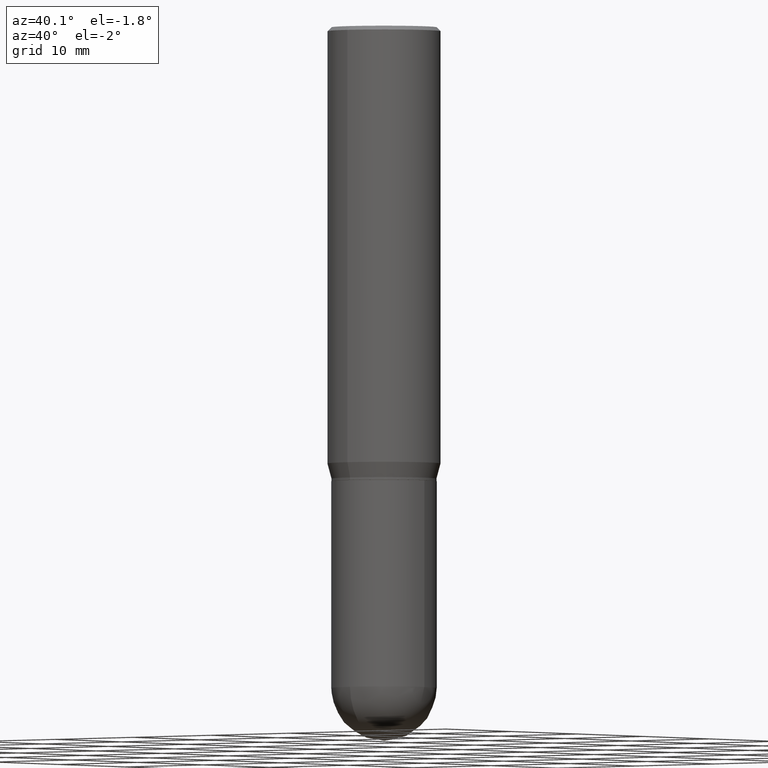
[diagram: clean part render]
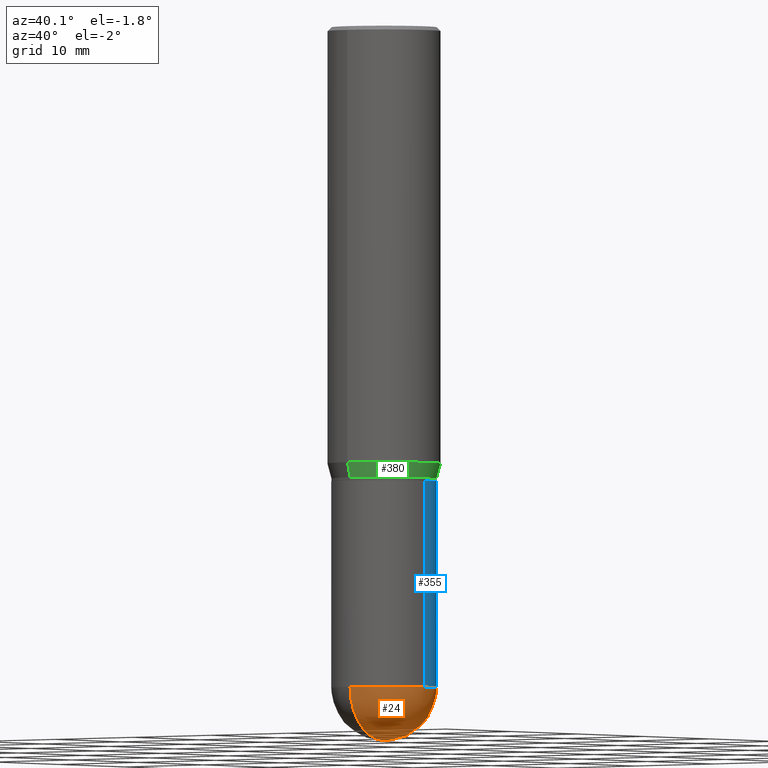
[diagram: same view with three faces highlighted in distinct colors, each labeled with its STEP entity id]
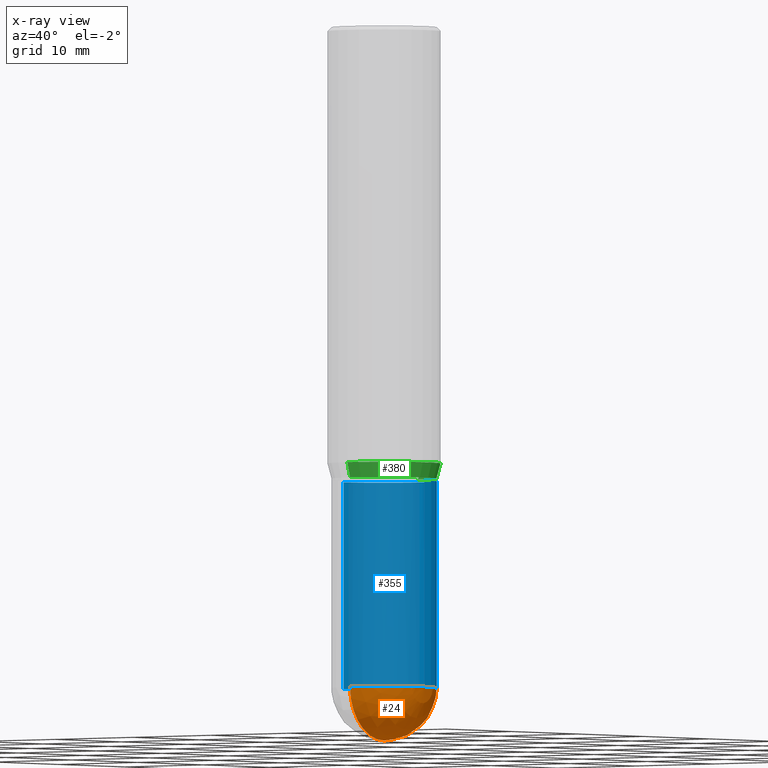
[diagram: x-ray of the same camera — body ghosted, the three highlighted faces saturated]
A machine part, auxiliary view with three faces highlighted in distinct colors.
The next image is the same camera in x-ray (body ghosted, the three faces saturated) — at least one of them is partly hidden behind the body in this view.
Their STEP definitions:

[orange] entity #24 — the highlighted spherical surface has radius 5.1587 mm.
#3 = CIRCLE ( 'NONE', #327, 0.2030999999999999472 ) ;
#6 = EDGE_CURVE ( 'NONE', #292, #410, #195, .T. ) ;
#24 = ADVANCED_FACE ( 'NONE', ( #175 ), #344, .T. ) ;
#28 = DIRECTION ( 'NONE',  ( -7.105427357601001070E-15, -1.000000000000000000, 0.000000000000000000 ) ) ;
#45 = CARTESIAN_POINT ( 'NONE',  ( -1.443112296328700980E-15, -0.2031000000000088845, -2.546899999999999498 ) ) ;
#49 = CIRCLE ( 'NONE', #472, 0.2031000000000000583 ) ;
#58 = DIRECTION ( 'NONE',  ( 6.982962677686266711E-15, 1.000000000000000000, 0.000000000000000000 ) ) ;
#67 = DIRECTION ( 'NONE',  ( -2.445468806185136597E-29, 3.491481338843145583E-15, 1.000000000000000000 ) ) ;
#102 = DIRECTION ( 'NONE',  ( 1.000000000000000000, -6.982962677686265922E-15, 4.883557194083112340E-29 ) ) ;
#157 = AXIS2_PLACEMENT_3D ( 'NONE', #461, #357, #363 ) ;
#159 = DIRECTION ( 'NONE',  ( -1.000000000000000000, 7.105427357601001070E-15, -4.926315508542082329E-29 ) ) ;
#175 = FACE_OUTER_BOUND ( 'NONE', #204, .T. ) ;
#179 = EDGE_CURVE ( 'NONE', #442, #255, #49, .T. ) ;
#195 = CIRCLE ( 'NONE', #505, 0.2030999999999999472 ) ;
#200 = CARTESIAN_POINT ( 'NONE',  ( 0.2031000000000000583, -8.919512802275635677E-15, -2.546899999999999942 ) ) ;
#204 = EDGE_LOOP ( 'NONE', ( #238, #330, #495, #341 ) ) ;
#205 = CARTESIAN_POINT ( 'NONE',  ( 6.210996075139691695E-29, -8.917326398390289827E-15, -2.546899999999999942 ) ) ;
#210 = CARTESIAN_POINT ( 'NONE',  ( 6.210996075139691695E-29, -8.917326398390289827E-15, -2.546899999999999942 ) ) ;
#215 = EDGE_CURVE ( 'NONE', #255, #410, #447, .T. ) ;
#226 = DIRECTION ( 'NONE',  ( -1.000000000000000000, 6.982962677686266711E-15, -4.883557194083112901E-29 ) ) ;
#233 = DIRECTION ( 'NONE',  ( 1.000000000000000000, -6.982962677686262766E-15, 0.000000000000000000 ) ) ;
#238 = ORIENTED_EDGE ( 'NONE', *, *, #433, .F. ) ;
#255 = VERTEX_POINT ( 'NONE', #200 ) ;
#292 = VERTEX_POINT ( 'NONE', #294 ) ;
#294 = CARTESIAN_POINT ( 'NONE',  ( 6.716355003342508555E-29, -9.614009970063991023E-15, -2.750000000000000000 ) ) ;
#327 = AXIS2_PLACEMENT_3D ( 'NONE', #205, #159, #28 ) ;
#330 = ORIENTED_EDGE ( 'NONE', *, *, #6, .T. ) ;
#335 = AXIS2_PLACEMENT_3D ( 'NONE', #210, #226, #483 ) ;
#341 = ORIENTED_EDGE ( 'NONE', *, *, #179, .F. ) ;
#344 = SPHERICAL_SURFACE ( 'NONE', #335, 0.2030999999999999472 ) ;
#357 = DIRECTION ( 'NONE',  ( -2.445468806185136597E-29, 3.491481338843145583E-15, 1.000000000000000000 ) ) ;
#363 = DIRECTION ( 'NONE',  ( 1.000000000000000000, -6.982962677686262766E-15, 0.000000000000000000 ) ) ;
#410 = VERTEX_POINT ( 'NONE', #465 ) ;
#424 = CARTESIAN_POINT ( 'NONE',  ( 6.228364502472924746E-29, -8.892453821899607499E-15, -2.546899999999999942 ) ) ;
#433 = EDGE_CURVE ( 'NONE', #292, #442, #3, .T. ) ;
#442 = VERTEX_POINT ( 'NONE', #45 ) ;
#447 = CIRCLE ( 'NONE', #157, 0.2031000000000000583 ) ;
#458 = CARTESIAN_POINT ( 'NONE',  ( 6.210996075139691695E-29, -8.917326398390289827E-15, -2.546899999999999942 ) ) ;
#461 = CARTESIAN_POINT ( 'NONE',  ( 6.228364502472924746E-29, -8.892453821899607499E-15, -2.546899999999999942 ) ) ;
#465 = CARTESIAN_POINT ( 'NONE',  ( 1.418239719838142898E-15, 0.2030999999999910932, -2.546900000000000830 ) ) ;
#472 = AXIS2_PLACEMENT_3D ( 'NONE', #424, #67, #233 ) ;
#483 = DIRECTION ( 'NONE',  ( 6.982962677686266711E-15, 1.000000000000000000, -2.690150658458162309E-15 ) ) ;
#495 = ORIENTED_EDGE ( 'NONE', *, *, #215, .F. ) ;
#505 = AXIS2_PLACEMENT_3D ( 'NONE', #458, #102, #58 ) ;

[blue] entity #355 — the highlighted cylindrical surface (partial cylindrical patch) has radius 5.1587 mm, axis along (-0, 0, 1).
#22 = DIRECTION ( 'NONE',  ( -2.445468806185136597E-29, 3.491481338843145583E-15, 1.000000000000000000 ) ) ;
#34 = CARTESIAN_POINT ( 'NONE',  ( 4.279570410823988484E-29, -6.110092342975504671E-15, -1.750000000000000000 ) ) ;
#44 = AXIS2_PLACEMENT_3D ( 'NONE', #34, #150, #140 ) ;
#51 = CIRCLE ( 'NONE', #44, 0.2031000000000000028 ) ;
#53 = CARTESIAN_POINT ( 'NONE',  ( 0.2031000000000000028, -7.528332062813585446E-15, -1.750000000000000000 ) ) ;
#69 = CARTESIAN_POINT ( 'NONE',  ( -0.2031000000000000583, -6.058160786108791010E-15, -2.546899999999999942 ) ) ;
#117 = LINE ( 'NONE', #476, #448 ) ;
#121 = DIRECTION ( 'NONE',  ( -2.445468806185136877E-29, 3.491481338843145188E-15, 1.000000000000000000 ) ) ;
#125 = ORIENTED_EDGE ( 'NONE', *, *, #444, .T. ) ;
#139 = VECTOR ( 'NONE', #324, 39.37007874015748143 ) ;
#140 = DIRECTION ( 'NONE',  ( 1.000000000000000000, -6.982962677686269866E-15, 0.000000000000000000 ) ) ;
#144 = CARTESIAN_POINT ( 'NONE',  ( 0.000000000000000000, 0.000000000000000000, 0.000000000000000000 ) ) ;
#150 = DIRECTION ( 'NONE',  ( -2.445468806185136597E-29, 3.491481338843145583E-15, 1.000000000000000000 ) ) ;
#157 = AXIS2_PLACEMENT_3D ( 'NONE', #461, #357, #363 ) ;
#158 = EDGE_CURVE ( 'NONE', #410, #391, #306, .T. ) ;
#190 = CYLINDRICAL_SURFACE ( 'NONE', #350, 0.2031000000000000028 ) ;
#200 = CARTESIAN_POINT ( 'NONE',  ( 0.2031000000000000583, -8.919512802275635677E-15, -2.546899999999999942 ) ) ;
#203 = ORIENTED_EDGE ( 'NONE', *, *, #342, .F. ) ;
#213 = CARTESIAN_POINT ( 'NONE',  ( 6.228364502472924746E-29, -8.892453821899607499E-15, -2.546899999999999942 ) ) ;
#215 = EDGE_CURVE ( 'NONE', #255, #410, #447, .T. ) ;
#220 = ORIENTED_EDGE ( 'NONE', *, *, #288, .F. ) ;
#255 = VERTEX_POINT ( 'NONE', #200 ) ;
#257 = LINE ( 'NONE', #418, #139 ) ;
#258 = DIRECTION ( 'NONE',  ( 1.000000000000000000, -6.982962677686262766E-15, 0.000000000000000000 ) ) ;
#259 = ORIENTED_EDGE ( 'NONE', *, *, #158, .T. ) ;
#284 = AXIS2_PLACEMENT_3D ( 'NONE', #213, #22, #258 ) ;
#288 = EDGE_CURVE ( 'NONE', #255, #503, #257, .T. ) ;
#306 = CIRCLE ( 'NONE', #284, 0.2031000000000000583 ) ;
#319 = DIRECTION ( 'NONE',  ( 1.000000000000000000, -6.982962677686266711E-15, 4.876176775795935793E-29 ) ) ;
#324 = DIRECTION ( 'NONE',  ( -2.445468806185136877E-29, 3.491481338843145188E-15, 1.000000000000000000 ) ) ;
#331 = CARTESIAN_POINT ( 'NONE',  ( -0.2031000000000000028, -6.058160786108792588E-15, -1.750000000000000000 ) ) ;
#342 = EDGE_CURVE ( 'NONE', #503, #498, #51, .T. ) ;
#350 = AXIS2_PLACEMENT_3D ( 'NONE', #144, #471, #319 ) ;
#354 = FACE_OUTER_BOUND ( 'NONE', #361, .T. ) ;
#355 = ADVANCED_FACE ( 'NONE', ( #354 ), #190, .T. ) ;
#357 = DIRECTION ( 'NONE',  ( -2.445468806185136597E-29, 3.491481338843145583E-15, 1.000000000000000000 ) ) ;
#361 = EDGE_LOOP ( 'NONE', ( #259, #125, #203, #220, #416 ) ) ;
#363 = DIRECTION ( 'NONE',  ( 1.000000000000000000, -6.982962677686262766E-15, 0.000000000000000000 ) ) ;
#391 = VERTEX_POINT ( 'NONE', #69 ) ;
#410 = VERTEX_POINT ( 'NONE', #465 ) ;
#416 = ORIENTED_EDGE ( 'NONE', *, *, #215, .T. ) ;
#418 = CARTESIAN_POINT ( 'NONE',  ( 0.2031000000000000028, -1.418239719838080775E-15, 9.903515031641546145E-30 ) ) ;
#444 = EDGE_CURVE ( 'NONE', #391, #498, #117, .T. ) ;
#447 = CIRCLE ( 'NONE', #157, 0.2031000000000000583 ) ;
#448 = VECTOR ( 'NONE', #121, 39.37007874015748143 ) ;
#461 = CARTESIAN_POINT ( 'NONE',  ( 6.228364502472924746E-29, -8.892453821899607499E-15, -2.546899999999999942 ) ) ;
#465 = CARTESIAN_POINT ( 'NONE',  ( 1.418239719838142898E-15, 0.2030999999999910932, -2.546900000000000830 ) ) ;
#471 = DIRECTION ( 'NONE',  ( -2.445468806185136597E-29, 3.491481338843145583E-15, 1.000000000000000000 ) ) ;
#476 = CARTESIAN_POINT ( 'NONE',  ( -0.2031000000000000028, 1.443112296328763497E-15, -9.990357168307714203E-30 ) ) ;
#498 = VERTEX_POINT ( 'NONE', #331 ) ;
#503 = VERTEX_POINT ( 'NONE', #53 ) ;

[green] entity #380 — the highlighted conical surface has half-angle 15 deg.
#33 = ORIENTED_EDGE ( 'NONE', *, *, #106, .F. ) ;
#56 = EDGE_LOOP ( 'NONE', ( #174, #382, #33, #467 ) ) ;
#91 = CARTESIAN_POINT ( 'NONE',  ( 1.498712265402032742E-15, 0.2030999999999938688, -1.740000000000000879 ) ) ;
#96 = CARTESIAN_POINT ( 'NONE',  ( 4.111863840197258972E-29, -5.871853995066253491E-15, -1.681593404861546848 ) ) ;
#101 = FACE_OUTER_BOUND ( 'NONE', #56, .T. ) ;
#104 = DIRECTION ( 'NONE',  ( -1.807323732225323040E-15, -0.2588190451025171868, 0.9659258262890693114 ) ) ;
#106 = EDGE_CURVE ( 'NONE', #309, #176, #110, .T. ) ;
#108 = CARTESIAN_POINT ( 'NONE',  ( 4.254680745808648669E-29, -6.075800441341822188E-15, -1.739999999999999991 ) ) ;
#110 = CIRCLE ( 'NONE', #317, 0.2187500000000000000 ) ;
#154 = CARTESIAN_POINT ( 'NONE',  ( -1.418239719838037782E-15, -0.2031000000000060257, -1.739999999999999103 ) ) ;
#174 = ORIENTED_EDGE ( 'NONE', *, *, #325, .T. ) ;
#176 = VERTEX_POINT ( 'NONE', #305 ) ;
#178 = DIRECTION ( 'NONE',  ( -6.982962677686265133E-15, -1.000000000000000000, 3.746534391310989557E-15 ) ) ;
#187 = LINE ( 'NONE', #197, #321 ) ;
#193 = EDGE_CURVE ( 'NONE', #492, #309, #187, .T. ) ;
#196 = AXIS2_PLACEMENT_3D ( 'NONE', #235, #318, #504 ) ;
#197 = CARTESIAN_POINT ( 'NONE',  ( -1.418239719838037782E-15, -0.2031000000000060257, -1.739999999999999103 ) ) ;
#208 = CIRCLE ( 'NONE', #499, 0.2030999999999999472 ) ;
#232 = CARTESIAN_POINT ( 'NONE',  ( -1.527523085743829428E-15, -0.2187500000000058287, -1.681593404861545960 ) ) ;
#235 = CARTESIAN_POINT ( 'NONE',  ( 4.254680745808648669E-29, -6.075800441341822188E-15, -1.739999999999999991 ) ) ;
#237 = EDGE_CURVE ( 'NONE', #293, #176, #406, .T. ) ;
#240 = VECTOR ( 'NONE', #279, 39.37007874015748143 ) ;
#260 = DIRECTION ( 'NONE',  ( -2.445218819430257669E-29, 3.491839334104495039E-15, 1.000000000000000000 ) ) ;
#270 = CARTESIAN_POINT ( 'NONE',  ( 1.443112296328805307E-15, 0.2030999999999938688, -1.740000000000000879 ) ) ;
#273 = DIRECTION ( 'NONE',  ( -2.445218819430257669E-29, 3.491839334104495039E-15, 1.000000000000000000 ) ) ;
#279 = DIRECTION ( 'NONE',  ( 1.839019923739593216E-15, 0.2588190451025239591, 0.9659258262890674240 ) ) ;
#293 = VERTEX_POINT ( 'NONE', #91 ) ;
#305 = CARTESIAN_POINT ( 'NONE',  ( 1.554312234475260177E-15, 0.2187499999999941436, -1.681593404861547736 ) ) ;
#309 = VERTEX_POINT ( 'NONE', #232 ) ;
#317 = AXIS2_PLACEMENT_3D ( 'NONE', #96, #260, #178 ) ;
#318 = DIRECTION ( 'NONE',  ( -2.445218819430257669E-29, 3.491839334104495039E-15, 1.000000000000000000 ) ) ;
#321 = VECTOR ( 'NONE', #104, 39.37007874015748854 ) ;
#325 = EDGE_CURVE ( 'NONE', #492, #293, #208, .T. ) ;
#348 = DIRECTION ( 'NONE',  ( -6.982962677686266711E-15, -1.000000000000000000, 4.035225987687243463E-15 ) ) ;
#380 = ADVANCED_FACE ( 'NONE', ( #101 ), #474, .T. ) ;
#382 = ORIENTED_EDGE ( 'NONE', *, *, #237, .T. ) ;
#406 = LINE ( 'NONE', #270, #240 ) ;
#467 = ORIENTED_EDGE ( 'NONE', *, *, #193, .F. ) ;
#474 = CONICAL_SURFACE ( 'NONE', #196, 0.2030999999999999472, 0.2617993877991492413 ) ;
#492 = VERTEX_POINT ( 'NONE', #154 ) ;
#499 = AXIS2_PLACEMENT_3D ( 'NONE', #108, #273, #348 ) ;
#504 = DIRECTION ( 'NONE',  ( -6.982962677686266711E-15, -1.000000000000000000, 4.035225987687243463E-15 ) ) ;